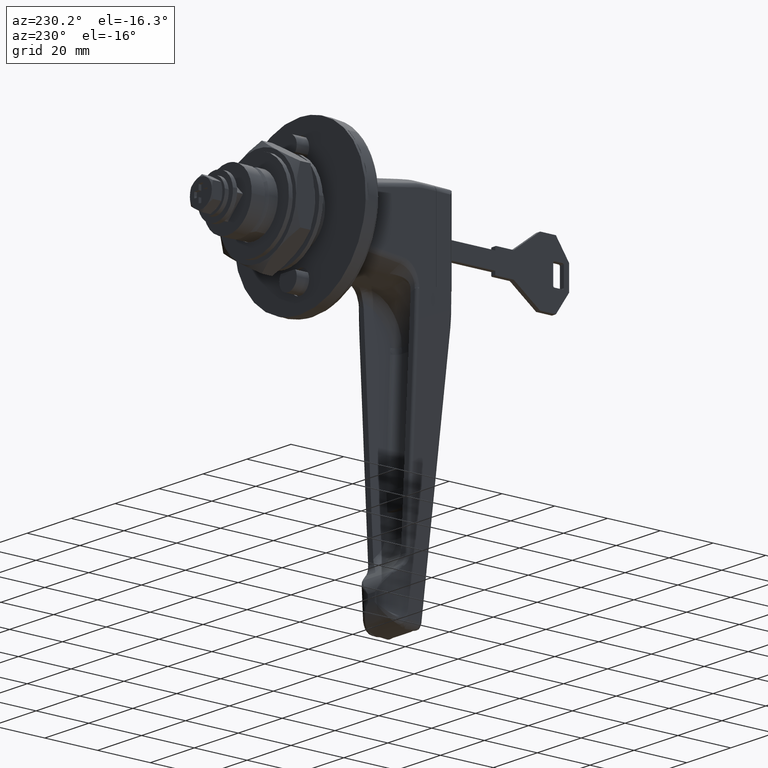
[diagram: clean part render]
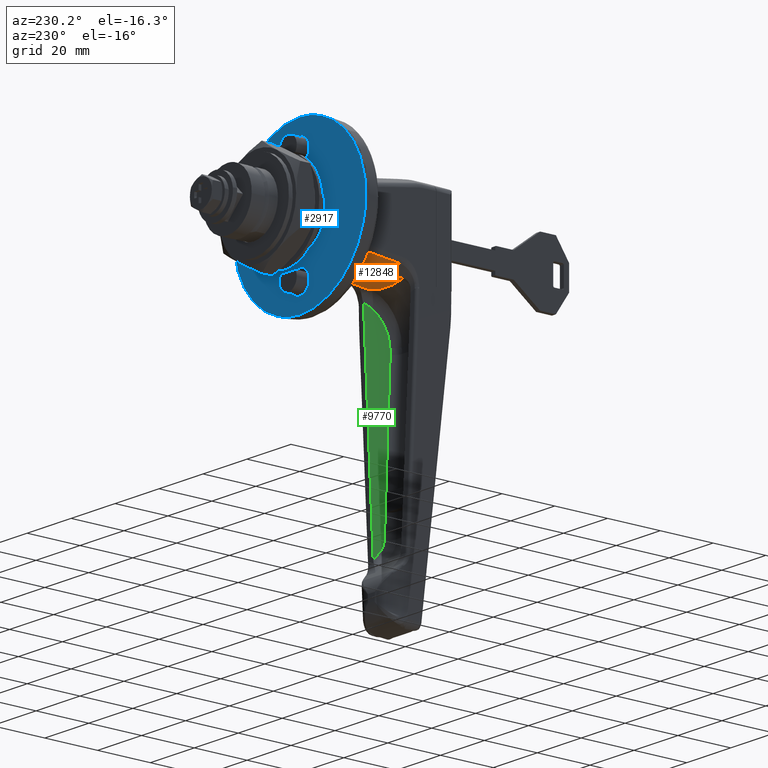
[diagram: same view with three faces highlighted in distinct colors, each labeled with its STEP entity id]
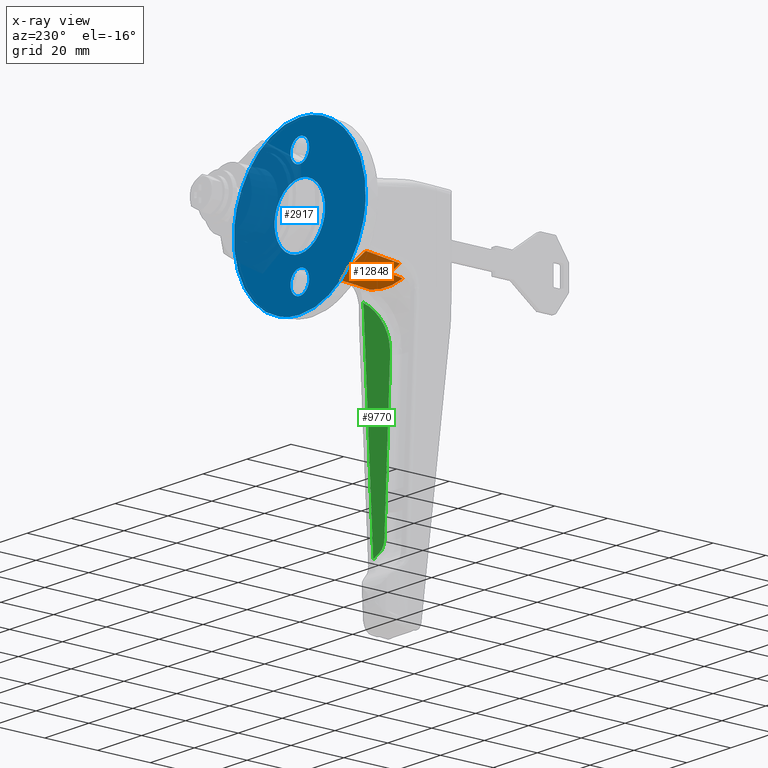
[diagram: x-ray of the same camera — body ghosted, the three highlighted faces saturated]
A machine part, auxiliary view with three faces highlighted in distinct colors.
The next image is the same camera in x-ray (body ghosted, the three faces saturated) — at least one of them is partly hidden behind the body in this view.
Their STEP definitions:

[orange] entity #12848 — the highlighted face is a freeform B-spline surface patch.
#6753=CARTESIAN_POINT('',(-27.635171701234800,-12.447592183867300,-12.017092261031220));
#6754=VERTEX_POINT('',#6753);
#6823=CARTESIAN_POINT('',(-14.600000000000600,-12.495669063283160,-10.653134984590761));
#6824=VERTEX_POINT('',#6823);
#6853=CARTESIAN_POINT('',(-14.600000000000600,-12.495669063283160,-10.653134984590761));
#6854=CARTESIAN_POINT('',(-18.944606270683991,-12.478832110940530,-11.112057810695850));
#6855=CARTESIAN_POINT('',(-23.289694452894292,-12.462845471205959,-11.566435502931149));
#6856=CARTESIAN_POINT('',(-27.635171701234800,-12.447592183867300,-12.017092261031220));
#6857=QUASI_UNIFORM_CURVE('',3,(#6853,#6854,#6855,#6856),.UNSPECIFIED.,.F.,.U.);
#6858=EDGE_CURVE('',#6824,#6754,#6857,.T.);
#7432=CARTESIAN_POINT('',(-27.635171701234800,12.447592183867300,-12.017092261031220));
#7433=VERTEX_POINT('',#7432);
#7569=CARTESIAN_POINT('',(-14.600000000000600,12.495669063283160,-10.653134984590761));
#7570=VERTEX_POINT('',#7569);
#7591=CARTESIAN_POINT('',(-27.635171701234800,12.447592183867300,-12.017092261031220));
#7592=CARTESIAN_POINT('',(-23.289694284420090,12.462845471797319,-11.566435485459181));
#7593=CARTESIAN_POINT('',(-18.944606474131682,12.478832110152091,-11.112057832186130));
#7594=CARTESIAN_POINT('',(-14.600000000000600,12.495669063283160,-10.653134984590761));
#7595=QUASI_UNIFORM_CURVE('',3,(#7591,#7592,#7593,#7594),.UNSPECIFIED.,.F.,.U.);
#7596=EDGE_CURVE('',#7433,#7570,#7595,.T.);
#8095=CARTESIAN_POINT('',(-32.713005408632313,-7.467024460777550,-14.553478462557701));
#8096=VERTEX_POINT('',#8095);
#8119=CARTESIAN_POINT('',(-32.713046744798497,7.462590976600210,-14.554725744493640));
#8120=VERTEX_POINT('',#8119);
#8138=CARTESIAN_POINT('',(-32.713005408632313,-7.467024460777550,-14.553478462557701));
#8139=CARTESIAN_POINT('',(-32.713026076715401,-0.002405353614197,-16.734703323049295));
#8140=CARTESIAN_POINT('',(-32.713046744798497,7.462590976600210,-14.554725744493640));
#8148=(BOUNDED_CURVE()B_SPLINE_CURVE(2,(#8138,#8139,#8140),.UNSPECIFIED.,.F.,.U.)CURVE()GEOMETRIC_REPRESENTATION_ITEM()QUASI_UNIFORM_CURVE()RATIONAL_B_SPLINE_CURVE((1.0,0.959883520867308,1.0))REPRESENTATION_ITEM(''));
#8149=EDGE_CURVE('',#8096,#8120,#8148,.T.);
#8171=CARTESIAN_POINT('',(-27.635171701234800,-7.738737183955980,-13.996820480340199));
#8172=VERTEX_POINT('',#8171);
#8173=CARTESIAN_POINT('',(-27.635171701234800,-12.447592183867300,-12.017092261031230));
#8174=CARTESIAN_POINT('',(-27.635171701234800,-10.190243349153670,-13.237861478645010));
#8175=CARTESIAN_POINT('',(-27.635171701234800,-7.738737183955976,-13.996820480340199));
#8183=(BOUNDED_CURVE()B_SPLINE_CURVE(2,(#8173,#8174,#8175),.UNSPECIFIED.,.F.,.U.)CURVE()GEOMETRIC_REPRESENTATION_ITEM()QUASI_UNIFORM_CURVE()RATIONAL_B_SPLINE_CURVE((1.0,0.995225286682226,1.0))REPRESENTATION_ITEM(''));
#8184=EDGE_CURVE('',#6754,#8172,#8183,.T.);
#8278=CARTESIAN_POINT('',(-27.635171701234800,7.739360801991429,-13.996627406618201));
#8279=VERTEX_POINT('',#8278);
#8280=CARTESIAN_POINT('',(-27.635171701234800,7.739360801991430,-13.996627406618209));
#8281=CARTESIAN_POINT('',(-27.635171701234800,10.190533225447613,-13.237704714191450));
#8282=CARTESIAN_POINT('',(-27.635171701234800,12.447592183867300,-12.017092261031230));
#8290=(BOUNDED_CURVE()B_SPLINE_CURVE(2,(#8280,#8281,#8282),.UNSPECIFIED.,.F.,.U.)CURVE()GEOMETRIC_REPRESENTATION_ITEM()QUASI_UNIFORM_CURVE()RATIONAL_B_SPLINE_CURVE((1.0,0.995226504122256,1.0))REPRESENTATION_ITEM(''));
#8291=EDGE_CURVE('',#8279,#7433,#8290,.T.);
#8918=CARTESIAN_POINT('',(-32.713046744798497,7.462590976600228,-14.554725744493650));
#8919=CARTESIAN_POINT('',(-32.664963859800707,7.485092947557041,-14.543668856912969));
#8920=CARTESIAN_POINT('',(-32.615609876240789,7.504928991727859,-14.533237018610890));
#8921=CARTESIAN_POINT('',(-32.514955083305871,7.540526658858047,-14.513347740704820));
#8922=CARTESIAN_POINT('',(-32.463462403638488,7.556322163232826,-14.503861881664330));
#8923=CARTESIAN_POINT('',(-32.307910924790960,7.598244335229693,-14.476882646066480));
#8924=CARTESIAN_POINT('',(-32.203474807710784,7.618910604921078,-14.460934969761130));
#8925=CARTESIAN_POINT('',(-31.993541274204429,7.649816834541619,-14.432034712222720));
#8926=CARTESIAN_POINT('',(-31.888035914385512,7.659976540017238,-14.419103208925970));
#8927=CARTESIAN_POINT('',(-31.729087708292418,7.668468292203817,-14.401673271717780));
#8928=CARTESIAN_POINT('',(-31.675951782606980,7.669801140126208,-14.396299971359349));
#8929=CARTESIAN_POINT('',(-31.569674185495490,7.672410180765824,-14.385569459824749));
#8930=CARTESIAN_POINT('',(-31.091407754569332,7.683956776790958,-14.337334968544241));
#8931=CARTESIAN_POINT('',(-30.612956563025460,7.693870134384970,-14.289541213572750));
#8932=CARTESIAN_POINT('',(-29.336937896528010,7.717492324097447,-14.162866347515290));
#8933=CARTESIAN_POINT('',(-28.486101999856210,7.729541595367614,-14.079439198572230));
#8934=CARTESIAN_POINT('',(-27.635171701234849,7.739360801991380,-13.996627406618220));
#8935=B_SPLINE_CURVE_WITH_KNOTS('',3,(#8918,#8919,#8920,#8921,#8922,#8923,#8924,#8925,#8926,#8927,#8928,#8929,#8930,#8931,#8932,#8933,#8934),.UNSPECIFIED.,.F.,.U.,(4,2,2,2,2,2,1,2,4),(0.0,0.031249999999996,0.062499999999991,0.124999999999987,0.187499999999982,0.218749999999981,0.249999999999981,0.499999999999987,1.0),.UNSPECIFIED.);
#8936=EDGE_CURVE('',#8120,#8279,#8935,.T.);
#9381=CARTESIAN_POINT('',(-27.635171701234800,-7.738737183955980,-13.996820480340199));
#9382=CARTESIAN_POINT('',(-28.131413947335609,-7.732653470695120,-14.045216507201349));
#9383=CARTESIAN_POINT('',(-29.077101449314060,-7.721059754840367,-14.137444684281430));
#9384=CARTESIAN_POINT('',(-30.261447305777779,-7.700501428498480,-14.254648696571380));
#9385=CARTESIAN_POINT('',(-31.107146116832741,-7.683690319019505,-14.338919524327940));
#9386=CARTESIAN_POINT('',(-31.579342200458321,-7.670954551555234,-14.386954889334071));
#9387=CARTESIAN_POINT('',(-31.897053783322530,-7.661554750059202,-14.419515813037750));
#9388=CARTESIAN_POINT('',(-32.133545592570222,-7.632813772165025,-14.450284544038681));
#9389=CARTESIAN_POINT('',(-32.363914856706650,-7.588061757432561,-14.485202357680951));
#9390=CARTESIAN_POINT('',(-32.555457220186959,-7.531490649448646,-14.519871351326810));
#9391=CARTESIAN_POINT('',(-32.668420757549313,-7.487060368074142,-14.543463592244059));
#9392=CARTESIAN_POINT('',(-32.713005408632313,-7.467024460777550,-14.553478462557701));
#9393=B_SPLINE_CURVE_WITH_KNOTS('',3,(#9381,#9382,#9383,#9384,#9385,#9386,#9387,#9388,#9389,#9390,#9391,#9392),.UNSPECIFIED.,.F.,.U.,(4,1,1,1,1,1,1,1,1,4),(0.0,0.262261964463046,0.499791914102039,0.626073190620037,0.709329894487251,0.749569866498681,0.794037555523133,0.835485512243118,0.874233313746096,0.900459639410522),.UNSPECIFIED.);
#9394=EDGE_CURVE('',#8172,#8096,#9393,.T.);
#12812=CARTESIAN_POINT('',(-14.147173831380650,-13.045532544760690,-10.278819175806049));
#12813=CARTESIAN_POINT('',(-33.177193567633950,-13.936255093669990,-11.731693865974680));
#12814=CARTESIAN_POINT('',(-14.147173831380647,0.344612238558460,-18.487995075400139));
#12815=CARTESIAN_POINT('',(-33.177193567633950,0.368141664471963,-20.501375674901517));
#12816=CARTESIAN_POINT('',(-14.147173831380650,13.539252702512483,-9.968135376102707));
#12817=CARTESIAN_POINT('',(-33.177193567633950,14.463685464159488,-11.399797205468060));
#12825=(BOUNDED_SURFACE()B_SPLINE_SURFACE(1,2,((#12812,#12814,#12816),(#12813,#12815,#12817)),.UNSPECIFIED.,.F.,.F.,.U.)B_SPLINE_SURFACE_WITH_KNOTS((2,2),(3,3),(0.0,19.106173941599572),(0.0,30.764965229626000),.UNSPECIFIED.)GEOMETRIC_REPRESENTATION_ITEM()RATIONAL_B_SPLINE_SURFACE(((1.0,0.842887053800002,0.991787431384506),(1.0,0.842887053800002,0.991787431384506)))REPRESENTATION_ITEM('')SURFACE());
#12826=CARTESIAN_POINT('',(-14.600000000000600,12.495669063283170,-10.653134984590761));
#12827=CARTESIAN_POINT('',(-14.600000000000597,3.469447E-015,-17.864180657663439));
#12828=CARTESIAN_POINT('',(-14.600000000000600,-12.495669063283160,-10.653134984590761));
#12836=(BOUNDED_CURVE()B_SPLINE_CURVE(2,(#12826,#12827,#12828),.UNSPECIFIED.,.F.,.U.)CURVE()GEOMETRIC_REPRESENTATION_ITEM()QUASI_UNIFORM_CURVE()RATIONAL_B_SPLINE_CURVE((1.0,0.866125399383630,1.0))REPRESENTATION_ITEM(''));
#12837=EDGE_CURVE('',#7570,#6824,#12836,.T.);
#12838=ORIENTED_EDGE('',*,*,#12837,.T.);
#12839=ORIENTED_EDGE('',*,*,#6858,.T.);
#12840=ORIENTED_EDGE('',*,*,#8184,.T.);
#12841=ORIENTED_EDGE('',*,*,#9394,.T.);
#12842=ORIENTED_EDGE('',*,*,#8149,.T.);
#12843=ORIENTED_EDGE('',*,*,#8936,.T.);
#12844=ORIENTED_EDGE('',*,*,#8291,.T.);
#12845=ORIENTED_EDGE('',*,*,#7596,.T.);
#12846=EDGE_LOOP('',(#12838,#12839,#12840,#12841,#12842,#12843,#12844,#12845));
#12847=FACE_OUTER_BOUND('',#12846,.T.);
#12848=ADVANCED_FACE('',(#12847),#12825,.T.);

[blue] entity #2917 — the highlighted face is a freeform B-spline surface patch.
#2166=CARTESIAN_POINT('',(1.597178E-017,-29.790285790895460,3.541026970070490));
#2167=VERTEX_POINT('',#2166);
#2168=CARTESIAN_POINT('',(0.0,0.0,-30.000000069754488));
#2169=VERTEX_POINT('',#2168);
#2170=CARTESIAN_POINT('',(1.597178E-017,-29.790285790895464,3.541026970070490));
#2171=CARTESIAN_POINT('',(0.0,-30.0,1.776723519926331));
#2172=CARTESIAN_POINT('',(0.0,-30.0,-0.000000069754492));
#2173=CARTESIAN_POINT('',(0.0,-29.999999999999993,-30.000000069754478));
#2174=CARTESIAN_POINT('',(0.0,0.0,-30.000000069754488));
#2182=(BOUNDED_CURVE()B_SPLINE_CURVE(2,(#2170,#2171,#2172,#2173,#2174),.UNSPECIFIED.,.F.,.U.)B_SPLINE_CURVE_WITH_KNOTS((3,2,3),(0.229562473514257,0.250000000000000,0.500000000000000),.UNSPECIFIED.)CURVE()GEOMETRIC_REPRESENTATION_ITEM()RATIONAL_B_SPLINE_CURVE((0.956026754185168,0.976055948332023,1.0,0.707106781186547,1.0))REPRESENTATION_ITEM(''));
#2183=EDGE_CURVE('',#2167,#2169,#2182,.T.);
#2224=CARTESIAN_POINT('',(-7.315473E-012,29.944045588277429,-1.831429513234335));
#2225=VERTEX_POINT('',#2224);
#2231=CARTESIAN_POINT('',(0.0,0.0,-30.000000069754488));
#2232=CARTESIAN_POINT('',(0.0,28.221207258182591,-30.000000069754492));
#2233=CARTESIAN_POINT('',(-7.315473E-012,29.944045588277429,-1.831429513234336));
#2241=(BOUNDED_CURVE()B_SPLINE_CURVE(2,(#2231,#2232,#2233),.UNSPECIFIED.,.F.,.U.)B_SPLINE_CURVE_WITH_KNOTS((3,3),(0.500000000000000,0.739333116340875),.UNSPECIFIED.)CURVE()GEOMETRIC_REPRESENTATION_ITEM()RATIONAL_B_SPLINE_CURVE((1.0,0.719603812745067,0.976072371936714))REPRESENTATION_ITEM(''));
#2242=EDGE_CURVE('',#2169,#2225,#2241,.T.);
#2265=CARTESIAN_POINT('',(0.0,0.0,29.999999930245512));
#2266=VERTEX_POINT('',#2265);
#2267=CARTESIAN_POINT('',(0.0,0.0,29.999999930245512));
#2268=CARTESIAN_POINT('',(0.0,-26.645235778320853,29.999999930245504));
#2269=CARTESIAN_POINT('',(1.597178E-017,-29.790285790895464,3.541026970070490));
#2277=(BOUNDED_CURVE()B_SPLINE_CURVE(2,(#2267,#2268,#2269),.UNSPECIFIED.,.F.,.U.)B_SPLINE_CURVE_WITH_KNOTS((3,3),(0.0,0.229562473514257),.UNSPECIFIED.)CURVE()GEOMETRIC_REPRESENTATION_ITEM()RATIONAL_B_SPLINE_CURVE((1.0,0.731050832854525,0.956026754185168))REPRESENTATION_ITEM(''));
#2278=EDGE_CURVE('',#2266,#2167,#2277,.T.);
#2280=CARTESIAN_POINT('',(-7.315473E-012,29.944045588277429,-1.831429513234336));
#2281=CARTESIAN_POINT('',(0.0,29.999999999999996,-0.916569559938369));
#2282=CARTESIAN_POINT('',(0.0,30.0,-0.000000069754492));
#2283=CARTESIAN_POINT('',(0.0,29.999999999999993,29.999999930245508));
#2284=CARTESIAN_POINT('',(0.0,0.0,29.999999930245512));
#2292=(BOUNDED_CURVE()B_SPLINE_CURVE(2,(#2280,#2281,#2282,#2283,#2284),.UNSPECIFIED.,.F.,.U.)B_SPLINE_CURVE_WITH_KNOTS((3,2,3),(0.739333116340875,0.750000000000000,1.0),.UNSPECIFIED.)CURVE()GEOMETRIC_REPRESENTATION_ITEM()RATIONAL_B_SPLINE_CURVE((0.976072371936714,0.987502968441480,1.0,0.707106781186547,1.0))REPRESENTATION_ITEM(''));
#2293=EDGE_CURVE('',#2225,#2266,#2292,.T.);
#2352=CARTESIAN_POINT('',(1.597178E-017,-11.419609553150719,1.357393698817261));
#2353=VERTEX_POINT('',#2352);
#2354=CARTESIAN_POINT('',(0.0,0.0,-11.500000000000000));
#2355=VERTEX_POINT('',#2354);
#2356=CARTESIAN_POINT('',(1.597178E-017,-11.419609553150723,1.357393698817261));
#2357=CARTESIAN_POINT('',(0.0,-11.500000000000000,0.681077376264301));
#2358=CARTESIAN_POINT('',(0.0,-11.500000000000000,0.0));
#2359=CARTESIAN_POINT('',(0.0,-11.500000000000000,-11.500000000000000));
#2360=CARTESIAN_POINT('',(0.0,0.0,-11.500000000000000));
#2368=(BOUNDED_CURVE()B_SPLINE_CURVE(2,(#2356,#2357,#2358,#2359,#2360),.UNSPECIFIED.,.F.,.U.)B_SPLINE_CURVE_WITH_KNOTS((3,2,3),(0.229562473507814,0.250000000000000,0.500000000000000),.UNSPECIFIED.)CURVE()GEOMETRIC_REPRESENTATION_ITEM()RATIONAL_B_SPLINE_CURVE((0.956026754172539,0.976055948324474,1.0,0.707106781186548,1.0))REPRESENTATION_ITEM(''));
#2369=EDGE_CURVE('',#2353,#2355,#2368,.T.);
#2371=CARTESIAN_POINT('',(1.387779E-017,11.478550181837999,-0.702058204871087));
#2372=VERTEX_POINT('',#2371);
#2373=CARTESIAN_POINT('',(0.0,0.0,-11.500000000000000));
#2374=CARTESIAN_POINT('',(0.0,10.818119768999640,-11.500000000000000));
#2375=CARTESIAN_POINT('',(1.387779E-017,11.478550181837997,-0.702058204871087));
#2383=(BOUNDED_CURVE()B_SPLINE_CURVE(2,(#2373,#2374,#2375),.UNSPECIFIED.,.F.,.U.)B_SPLINE_CURVE_WITH_KNOTS((3,3),(0.500000000000000,0.739332962235348),.UNSPECIFIED.)CURVE()GEOMETRIC_REPRESENTATION_ITEM()RATIONAL_B_SPLINE_CURVE((1.0,0.719603993290922,0.976072041659013))REPRESENTATION_ITEM(''));
#2384=EDGE_CURVE('',#2355,#2372,#2383,.T.);
#2451=CARTESIAN_POINT('',(0.0,0.0,11.500000000000000));
#2452=VERTEX_POINT('',#2451);
#2453=CARTESIAN_POINT('',(0.0,0.0,11.500000000000000));
#2454=CARTESIAN_POINT('',(0.0,-10.214007047964181,11.499999999999998));
#2455=CARTESIAN_POINT('',(1.597178E-017,-11.419609553150723,1.357393698817261));
#2463=(BOUNDED_CURVE()B_SPLINE_CURVE(2,(#2453,#2454,#2455),.UNSPECIFIED.,.F.,.U.)B_SPLINE_CURVE_WITH_KNOTS((3,3),(0.0,0.229562473507814),.UNSPECIFIED.)CURVE()GEOMETRIC_REPRESENTATION_ITEM()RATIONAL_B_SPLINE_CURVE((1.0,0.731050832862074,0.956026754172539))REPRESENTATION_ITEM(''));
#2464=EDGE_CURVE('',#2452,#2353,#2463,.T.);
#2498=CARTESIAN_POINT('',(1.387779E-017,11.478550181837997,-0.702058204871087));
#2499=CARTESIAN_POINT('',(0.0,11.499999999999996,-0.351356778154623));
#2500=CARTESIAN_POINT('',(0.0,11.500000000000000,0.0));
#2501=CARTESIAN_POINT('',(0.0,11.500000000000000,11.500000000000000));
#2502=CARTESIAN_POINT('',(0.0,0.0,11.500000000000000));
#2510=(BOUNDED_CURVE()B_SPLINE_CURVE(2,(#2498,#2499,#2500,#2501,#2502),.UNSPECIFIED.,.F.,.U.)B_SPLINE_CURVE_WITH_KNOTS((3,2,3),(0.739332962235347,0.750000000000000,1.0),.UNSPECIFIED.)CURVE()GEOMETRIC_REPRESENTATION_ITEM()RATIONAL_B_SPLINE_CURVE((0.976072041659011,0.987502787895625,1.0,0.707106781186548,1.0))REPRESENTATION_ITEM(''));
#2511=EDGE_CURVE('',#2372,#2452,#2510,.T.);
#2538=CARTESIAN_POINT('',(1.597178E-017,-4.220290486915709,20.501645428629342));
#2539=VERTEX_POINT('',#2538);
#2540=CARTESIAN_POINT('',(0.0,0.0,15.749999930245499));
#2541=VERTEX_POINT('',#2540);
#2542=CARTESIAN_POINT('',(1.597178E-017,-4.220290486915709,20.501645428629338));
#2543=CARTESIAN_POINT('',(0.0,-4.250000000000000,20.251702439870282));
#2544=CARTESIAN_POINT('',(0.0,-4.250000000000000,19.999999930245501));
#2545=CARTESIAN_POINT('',(0.0,-4.249999999999999,15.749999930245508));
#2546=CARTESIAN_POINT('',(0.0,0.0,15.749999930245499));
#2554=(BOUNDED_CURVE()B_SPLINE_CURVE(2,(#2542,#2543,#2544,#2545,#2546),.UNSPECIFIED.,.F.,.U.)B_SPLINE_CURVE_WITH_KNOTS((3,2,3),(0.229562473428136,0.250000000000000,0.500000000000000),.UNSPECIFIED.)CURVE()GEOMETRIC_REPRESENTATION_ITEM()RATIONAL_B_SPLINE_CURVE((0.956026754016366,0.976055948231125,1.0,0.707106781186548,1.0))REPRESENTATION_ITEM(''));
#2555=EDGE_CURVE('',#2539,#2541,#2554,.T.);
#2557=CARTESIAN_POINT('',(1.387779E-017,4.242072893231438,19.740543636216909));
#2558=VERTEX_POINT('',#2557);
#2559=CARTESIAN_POINT('',(0.0,0.0,15.749999930245499));
#2560=CARTESIAN_POINT('',(0.0,3.998000782450462,15.749999930245499));
#2561=CARTESIAN_POINT('',(1.387779E-017,4.242072893231438,19.740543636216902));
#2569=(BOUNDED_CURVE()B_SPLINE_CURVE(2,(#2559,#2560,#2561),.UNSPECIFIED.,.F.,.U.)B_SPLINE_CURVE_WITH_KNOTS((3,3),(0.500000000000000,0.739332962160175),.UNSPECIFIED.)CURVE()GEOMETRIC_REPRESENTATION_ITEM()RATIONAL_B_SPLINE_CURVE((1.0,0.719603993378993,0.976072041497903))REPRESENTATION_ITEM(''));
#2570=EDGE_CURVE('',#2541,#2558,#2569,.T.);
#2637=CARTESIAN_POINT('',(0.0,0.0,24.249999930245501));
#2638=VERTEX_POINT('',#2637);
#2639=CARTESIAN_POINT('',(0.0,0.0,24.249999930245501));
#2640=CARTESIAN_POINT('',(0.0,-3.774741733325029,24.249999930245501));
#2641=CARTESIAN_POINT('',(1.597178E-017,-4.220290486915709,20.501645428629342));
#2649=(BOUNDED_CURVE()B_SPLINE_CURVE(2,(#2639,#2640,#2641),.UNSPECIFIED.,.F.,.U.)B_SPLINE_CURVE_WITH_KNOTS((3,3),(0.0,0.229562473428136),.UNSPECIFIED.)CURVE()GEOMETRIC_REPRESENTATION_ITEM()RATIONAL_B_SPLINE_CURVE((1.0,0.731050832955422,0.956026754016366))REPRESENTATION_ITEM(''));
#2650=EDGE_CURVE('',#2638,#2539,#2649,.T.);
#2684=CARTESIAN_POINT('',(1.387779E-017,4.242072893231438,19.740543636216909));
#2685=CARTESIAN_POINT('',(0.0,4.250000000000001,19.870150685218224));
#2686=CARTESIAN_POINT('',(0.0,4.250000000000000,19.999999930245501));
#2687=CARTESIAN_POINT('',(0.0,4.249999999999999,24.249999930245504));
#2688=CARTESIAN_POINT('',(0.0,0.0,24.249999930245501));
#2696=(BOUNDED_CURVE()B_SPLINE_CURVE(2,(#2684,#2685,#2686,#2687,#2688),.UNSPECIFIED.,.F.,.U.)B_SPLINE_CURVE_WITH_KNOTS((3,2,3),(0.739332962160174,0.750000000000000,1.0),.UNSPECIFIED.)CURVE()GEOMETRIC_REPRESENTATION_ITEM()RATIONAL_B_SPLINE_CURVE((0.976072041497902,0.987502787807554,1.0,0.707106781186548,1.0))REPRESENTATION_ITEM(''));
#2697=EDGE_CURVE('',#2558,#2638,#2696,.T.);
#2724=CARTESIAN_POINT('',(1.597178E-017,-4.220290486915708,-19.498354571370609));
#2725=VERTEX_POINT('',#2724);
#2726=CARTESIAN_POINT('',(0.0,0.0,-24.250000069754449));
#2727=VERTEX_POINT('',#2726);
#2728=CARTESIAN_POINT('',(1.597178E-017,-4.220290486915708,-19.498354571370609));
#2729=CARTESIAN_POINT('',(0.0,-4.250000000000000,-19.748297560129661));
#2730=CARTESIAN_POINT('',(0.0,-4.250000000000000,-20.000000069754449));
#2731=CARTESIAN_POINT('',(0.0,-4.249999999999999,-24.250000069754442));
#2732=CARTESIAN_POINT('',(0.0,0.0,-24.250000069754449));
#2740=(BOUNDED_CURVE()B_SPLINE_CURVE(2,(#2728,#2729,#2730,#2731,#2732),.UNSPECIFIED.,.F.,.U.)B_SPLINE_CURVE_WITH_KNOTS((3,2,3),(0.229562473428136,0.250000000000000,0.500000000000000),.UNSPECIFIED.)CURVE()GEOMETRIC_REPRESENTATION_ITEM()RATIONAL_B_SPLINE_CURVE((0.956026754016366,0.976055948231125,1.0,0.707106781186548,1.0))REPRESENTATION_ITEM(''));
#2741=EDGE_CURVE('',#2725,#2727,#2740,.T.);
#2743=CARTESIAN_POINT('',(1.387779E-017,4.242072893231438,-20.259456363783048));
#2744=VERTEX_POINT('',#2743);
#2745=CARTESIAN_POINT('',(0.0,0.0,-24.250000069754449));
#2746=CARTESIAN_POINT('',(0.0,3.998000782450462,-24.250000069754453));
#2747=CARTESIAN_POINT('',(1.387779E-017,4.242072893231438,-20.259456363783045));
#2755=(BOUNDED_CURVE()B_SPLINE_CURVE(2,(#2745,#2746,#2747),.UNSPECIFIED.,.F.,.U.)B_SPLINE_CURVE_WITH_KNOTS((3,3),(0.500000000000000,0.739332962160175),.UNSPECIFIED.)CURVE()GEOMETRIC_REPRESENTATION_ITEM()RATIONAL_B_SPLINE_CURVE((1.0,0.719603993378993,0.976072041497903))REPRESENTATION_ITEM(''));
#2756=EDGE_CURVE('',#2727,#2744,#2755,.T.);
#2823=CARTESIAN_POINT('',(0.0,0.0,-15.750000069754449));
#2824=VERTEX_POINT('',#2823);
#2825=CARTESIAN_POINT('',(0.0,0.0,-15.750000069754449));
#2826=CARTESIAN_POINT('',(0.0,-3.774741733325028,-15.750000069754446));
#2827=CARTESIAN_POINT('',(1.597178E-017,-4.220290486915708,-19.498354571370609));
#2835=(BOUNDED_CURVE()B_SPLINE_CURVE(2,(#2825,#2826,#2827),.UNSPECIFIED.,.F.,.U.)B_SPLINE_CURVE_WITH_KNOTS((3,3),(0.0,0.229562473428136),.UNSPECIFIED.)CURVE()GEOMETRIC_REPRESENTATION_ITEM()RATIONAL_B_SPLINE_CURVE((1.0,0.731050832955423,0.956026754016366))REPRESENTATION_ITEM(''));
#2836=EDGE_CURVE('',#2824,#2725,#2835,.T.);
#2870=CARTESIAN_POINT('',(1.387779E-017,4.242072893231438,-20.259456363783045));
#2871=CARTESIAN_POINT('',(0.0,4.250000000000001,-20.129849314781726));
#2872=CARTESIAN_POINT('',(0.0,4.250000000000000,-20.000000069754449));
#2873=CARTESIAN_POINT('',(0.0,4.249999999999999,-15.750000069754451));
#2874=CARTESIAN_POINT('',(0.0,0.0,-15.750000069754449));
#2882=(BOUNDED_CURVE()B_SPLINE_CURVE(2,(#2870,#2871,#2872,#2873,#2874),.UNSPECIFIED.,.F.,.U.)B_SPLINE_CURVE_WITH_KNOTS((3,2,3),(0.739332962160174,0.750000000000000,1.0),.UNSPECIFIED.)CURVE()GEOMETRIC_REPRESENTATION_ITEM()RATIONAL_B_SPLINE_CURVE((0.976072041497902,0.987502787807554,1.0,0.707106781186548,1.0))REPRESENTATION_ITEM(''));
#2883=EDGE_CURVE('',#2744,#2824,#2882,.T.);
#2888=CARTESIAN_POINT('',(0.0,-32.996455936065132,32.996999813953870));
#2889=CARTESIAN_POINT('',(0.0,32.996269790759499,32.996999813953870));
#2890=CARTESIAN_POINT('',(0.0,-32.996455936065132,-32.997001562788249));
#2891=CARTESIAN_POINT('',(0.0,32.996269790759499,-32.997001562788249));
#2892=B_SPLINE_SURFACE_WITH_KNOTS('',1,1,((#2888,#2890),(#2889,#2891)),.UNSPECIFIED.,.F.,.F.,.U.,(2,2),(2,2),(0.0,65.992725726824631),(0.0,65.994001376742119),.UNSPECIFIED.);
#2893=ORIENTED_EDGE('',*,*,#2278,.T.);
#2894=ORIENTED_EDGE('',*,*,#2183,.T.);
#2895=ORIENTED_EDGE('',*,*,#2242,.T.);
#2896=ORIENTED_EDGE('',*,*,#2293,.T.);
#2897=EDGE_LOOP('',(#2893,#2894,#2895,#2896));
#2898=FACE_OUTER_BOUND('',#2897,.T.);
#2899=ORIENTED_EDGE('',*,*,#2756,.F.);
#2900=ORIENTED_EDGE('',*,*,#2741,.F.);
#2901=ORIENTED_EDGE('',*,*,#2836,.F.);
#2902=ORIENTED_EDGE('',*,*,#2883,.F.);
#2903=EDGE_LOOP('',(#2899,#2900,#2901,#2902));
#2904=FACE_BOUND('',#2903,.T.);
#2905=ORIENTED_EDGE('',*,*,#2570,.F.);
#2906=ORIENTED_EDGE('',*,*,#2555,.F.);
#2907=ORIENTED_EDGE('',*,*,#2650,.F.);
#2908=ORIENTED_EDGE('',*,*,#2697,.F.);
#2909=EDGE_LOOP('',(#2905,#2906,#2907,#2908));
#2910=FACE_BOUND('',#2909,.T.);
#2911=ORIENTED_EDGE('',*,*,#2384,.F.);
#2912=ORIENTED_EDGE('',*,*,#2369,.F.);
#2913=ORIENTED_EDGE('',*,*,#2464,.F.);
#2914=ORIENTED_EDGE('',*,*,#2511,.F.);
#2915=EDGE_LOOP('',(#2911,#2912,#2913,#2914));
#2916=FACE_BOUND('',#2915,.T.);
#2917=ADVANCED_FACE('',(#2898,#2904,#2910,#2916),#2892,.F.);

[green] entity #9770 — the highlighted face is a freeform B-spline surface patch.
#8188=CARTESIAN_POINT('',(-33.099999999999987,-10.683275159097899,-19.316112343968751));
#8189=VERTEX_POINT('',#8188);
#8203=CARTESIAN_POINT('',(-32.927683485059397,-10.770881752570279,-17.765394912810599));
#8204=VERTEX_POINT('',#8203);
#8205=CARTESIAN_POINT('',(-32.927683485059397,-10.770881752570279,-17.765394912810599));
#8206=CARTESIAN_POINT('',(-32.985011142845458,-10.756459675323180,-18.020678969571119));
#8207=CARTESIAN_POINT('',(-33.070861035335653,-10.727435265243621,-18.534437773052598));
#8208=CARTESIAN_POINT('',(-33.100000000000009,-10.698055975408881,-19.054478275211061));
#8209=CARTESIAN_POINT('',(-33.099999999999987,-10.683275159097899,-19.316112343968751));
#8210=B_SPLINE_CURVE_WITH_KNOTS('',3,(#8205,#8206,#8207,#8208,#8209),.UNSPECIFIED.,.F.,.U.,(4,1,4),(0.0,0.500000000000000,1.0),.UNSPECIFIED.);
#8211=EDGE_CURVE('',#8204,#8189,#8210,.T.);
#9012=CARTESIAN_POINT('',(-37.671831529858053,-6.716446244393610,-89.532639441256407));
#9013=VERTEX_POINT('',#9012);
#9029=CARTESIAN_POINT('',(-35.501833188249499,-6.452561439727380,-94.203643645325897));
#9030=VERTEX_POINT('',#9029);
#9031=CARTESIAN_POINT('',(-37.671831529858053,-6.716446244393610,-89.532639441256407));
#9032=CARTESIAN_POINT('',(-37.560800662042702,-6.642371746097125,-90.843826318404695));
#9033=CARTESIAN_POINT('',(-37.000602744496682,-6.574067007766585,-92.052883127505069));
#9034=CARTESIAN_POINT('',(-36.437817657901661,-6.505446816808853,-93.267523738786352));
#9035=CARTESIAN_POINT('',(-35.501833188249726,-6.452561439727382,-94.203643645325911));
#9036=B_SPLINE_CURVE_WITH_KNOTS('',2,(#9031,#9032,#9033,#9034,#9035),.UNSPECIFIED.,.F.,.U.,(3,2,3),(0.0,0.500000000000000,1.0),.UNSPECIFIED.);
#9037=EDGE_CURVE('',#9013,#9030,#9036,.T.);
#9114=CARTESIAN_POINT('',(-42.560724329634198,-9.980866958505290,-31.749384741335309));
#9115=VERTEX_POINT('',#9114);
#9152=CARTESIAN_POINT('',(-42.560724329634212,-9.980866958505281,-31.749384741335369));
#9153=CARTESIAN_POINT('',(-40.931093396375502,-8.892726720468062,-51.010469641309079));
#9154=CARTESIAN_POINT('',(-39.301462463116778,-7.804586482430831,-70.271554541282683));
#9155=CARTESIAN_POINT('',(-37.671831529858053,-6.716446244393610,-89.532639441256407));
#9156=B_SPLINE_CURVE_WITH_KNOTS('',3,(#9152,#9153,#9154,#9155),.UNSPECIFIED.,.F.,.U.,(4,4),(0.0,0.331928600017760),.UNSPECIFIED.);
#9157=EDGE_CURVE('',#9115,#9013,#9156,.T.);
#9224=CARTESIAN_POINT('',(-42.560724329633302,-10.091964790769460,-29.782850737130900));
#9225=VERTEX_POINT('',#9224);
#9239=CARTESIAN_POINT('',(-42.560724329634198,-10.036415874637379,-30.766117739233110));
#9240=VERTEX_POINT('',#9239);
#9241=CARTESIAN_POINT('',(-42.560724329633302,-10.091964790769460,-29.782850737130900));
#9242=CARTESIAN_POINT('',(-42.560724329634198,-10.073448485392101,-30.110606404498309));
#9243=CARTESIAN_POINT('',(-42.560724329634198,-10.054932180014740,-30.438362071865711));
#9244=CARTESIAN_POINT('',(-42.560724329634198,-10.036415874637379,-30.766117739233110));
#9245=B_SPLINE_CURVE_WITH_KNOTS('',3,(#9241,#9242,#9243,#9244),.UNSPECIFIED.,.F.,.U.,(4,4),(0.0,0.158175244298099),.UNSPECIFIED.);
#9246=EDGE_CURVE('',#9225,#9240,#9245,.T.);
#9248=CARTESIAN_POINT('',(-42.560724329634198,-10.036415874637379,-30.766117739233110));
#9249=CARTESIAN_POINT('',(-42.560724329634198,-10.018566955273410,-31.082060059188500));
#9250=CARTESIAN_POINT('',(-42.560724329634198,-10.000718035909440,-31.398002379143879));
#9251=CARTESIAN_POINT('',(-42.560724329634198,-9.982869116545460,-31.713944699099251));
#9252=CARTESIAN_POINT('',(-42.560724329634198,-9.982201730532074,-31.725758046511260));
#9253=CARTESIAN_POINT('',(-42.560724329634198,-9.981534344518686,-31.737571393923272));
#9254=CARTESIAN_POINT('',(-42.560724329634198,-9.980866958505297,-31.749384741335280));
#9255=B_SPLINE_CURVE_WITH_KNOTS('',3,(#9248,#9249,#9250,#9251,#9252,#9253,#9254),.UNSPECIFIED.,.F.,.U.,(4,3,4),(0.158175244298099,0.310649354187504,0.316350488596199),.UNSPECIFIED.);
#9256=EDGE_CURVE('',#9240,#9115,#9255,.T.);
#9397=CARTESIAN_POINT('',(-33.099999999999987,-10.768979210132260,-17.799071667096051));
#9398=VERTEX_POINT('',#9397);
#9399=CARTESIAN_POINT('',(-33.099999999999987,-10.768979210132260,-17.799071667096051));
#9400=CARTESIAN_POINT('',(-32.927683485059397,-10.770881752570279,-17.765394912810599));
#9401=QUASI_UNIFORM_CURVE('',1,(#9399,#9400),.UNSPECIFIED.,.F.,.U.);
#9402=EDGE_CURVE('',#9398,#8204,#9401,.T.);
#9404=CARTESIAN_POINT('',(-33.099999999999987,-10.768979210132260,-17.799071667096051));
#9405=CARTESIAN_POINT('',(-34.954135384557603,-10.747630831571950,-18.176957639467421));
#9406=CARTESIAN_POINT('',(-36.613512449680698,-10.691890876416901,-19.163606208312299));
#9407=CARTESIAN_POINT('',(-38.380041439698637,-10.632551592565610,-20.213966211748222));
#9408=CARTESIAN_POINT('',(-39.708747112777722,-10.541749797912530,-21.821241648081159));
#9409=CARTESIAN_POINT('',(-41.074754466309713,-10.448398861190331,-23.473639247991379));
#9410=CARTESIAN_POINT('',(-41.813979652043699,-10.332939013297420,-25.517384948283471));
#9411=CARTESIAN_POINT('',(-42.560551758409673,-10.216331647225950,-27.581442777737660));
#9412=CARTESIAN_POINT('',(-42.560724329633302,-10.091964790769460,-29.782850737130900));
#9413=B_SPLINE_CURVE_WITH_KNOTS('',2,(#9404,#9405,#9406,#9407,#9408,#9409,#9410,#9411,#9412),.UNSPECIFIED.,.F.,.U.,(3,2,2,2,3),(0.0,0.250000000000000,0.500000000000000,0.750000000000000,1.0),.UNSPECIFIED.);
#9414=EDGE_CURVE('',#9398,#9225,#9413,.T.);
#9697=CARTESIAN_POINT('',(-34.300916594125262,-6.384716576606704,-95.404560239451200));
#9698=VERTEX_POINT('',#9697);
#9699=CARTESIAN_POINT('',(-35.501833188249499,-6.452561439727380,-94.203643645325897));
#9700=CARTESIAN_POINT('',(-35.101527656875419,-6.429946485353814,-94.603949176701065));
#9701=CARTESIAN_POINT('',(-34.701222125500337,-6.407331530980258,-95.004254708076132));
#9702=CARTESIAN_POINT('',(-34.300916594125262,-6.384716576606704,-95.404560239451200));
#9703=B_SPLINE_CURVE_WITH_KNOTS('',3,(#9699,#9700,#9701,#9702),.UNSPECIFIED.,.F.,.U.,(4,4),(0.912688552344667,0.956344276172334),.UNSPECIFIED.);
#9704=EDGE_CURVE('',#9030,#9698,#9703,.T.);
#9706=CARTESIAN_POINT('',(-33.099999999999987,-6.316871713486039,-96.605476833576418));
#9707=VERTEX_POINT('',#9706);
#9708=CARTESIAN_POINT('',(-34.300916594125262,-6.384716576606704,-95.404560239451200));
#9709=CARTESIAN_POINT('',(-33.900611062750180,-6.362101622233148,-95.804865770826254));
#9710=CARTESIAN_POINT('',(-33.500305531375091,-6.339486667859593,-96.205171302201308));
#9711=CARTESIAN_POINT('',(-33.100000000000009,-6.316871713486037,-96.605476833576375));
#9712=B_SPLINE_CURVE_WITH_KNOTS('',3,(#9708,#9709,#9710,#9711),.UNSPECIFIED.,.F.,.U.,(4,4),(0.956344276172334,1.0),.UNSPECIFIED.);
#9713=EDGE_CURVE('',#9698,#9707,#9712,.T.);
#9749=CARTESIAN_POINT('',(-43.041896621736122,-6.094393920666520,-100.543538772711300));
#9750=CARTESIAN_POINT('',(-43.041896621736122,-10.993359664855671,-13.827330859019931));
#9751=CARTESIAN_POINT('',(-32.446514207370853,-6.094393920666520,-100.543538772711300));
#9752=CARTESIAN_POINT('',(-32.446514207370853,-10.993359664855671,-13.827330859019931));
#9753=B_SPLINE_SURFACE_WITH_KNOTS('',1,1,((#9749,#9751),(#9750,#9752)),.UNSPECIFIED.,.F.,.F.,.U.,(2,2),(2,2),(0.0,86.854479333499469),(0.0,10.595382414365270),.UNSPECIFIED.);
#9754=ORIENTED_EDGE('',*,*,#9414,.F.);
#9755=ORIENTED_EDGE('',*,*,#9402,.T.);
#9756=ORIENTED_EDGE('',*,*,#8211,.T.);
#9757=CARTESIAN_POINT('',(-33.099999999999987,-10.683275159097899,-19.316112343968751));
#9758=CARTESIAN_POINT('',(-33.099999999999987,-6.316871713486039,-96.605476833576418));
#9759=QUASI_UNIFORM_CURVE('',1,(#9757,#9758),.UNSPECIFIED.,.F.,.U.);
#9760=EDGE_CURVE('',#8189,#9707,#9759,.T.);
#9761=ORIENTED_EDGE('',*,*,#9760,.T.);
#9762=ORIENTED_EDGE('',*,*,#9713,.F.);
#9763=ORIENTED_EDGE('',*,*,#9704,.F.);
#9764=ORIENTED_EDGE('',*,*,#9037,.F.);
#9765=ORIENTED_EDGE('',*,*,#9157,.F.);
#9766=ORIENTED_EDGE('',*,*,#9256,.F.);
#9767=ORIENTED_EDGE('',*,*,#9246,.F.);
#9768=EDGE_LOOP('',(#9754,#9755,#9756,#9761,#9762,#9763,#9764,#9765,#9766,#9767));
#9769=FACE_OUTER_BOUND('',#9768,.T.);
#9770=ADVANCED_FACE('',(#9769),#9753,.T.);